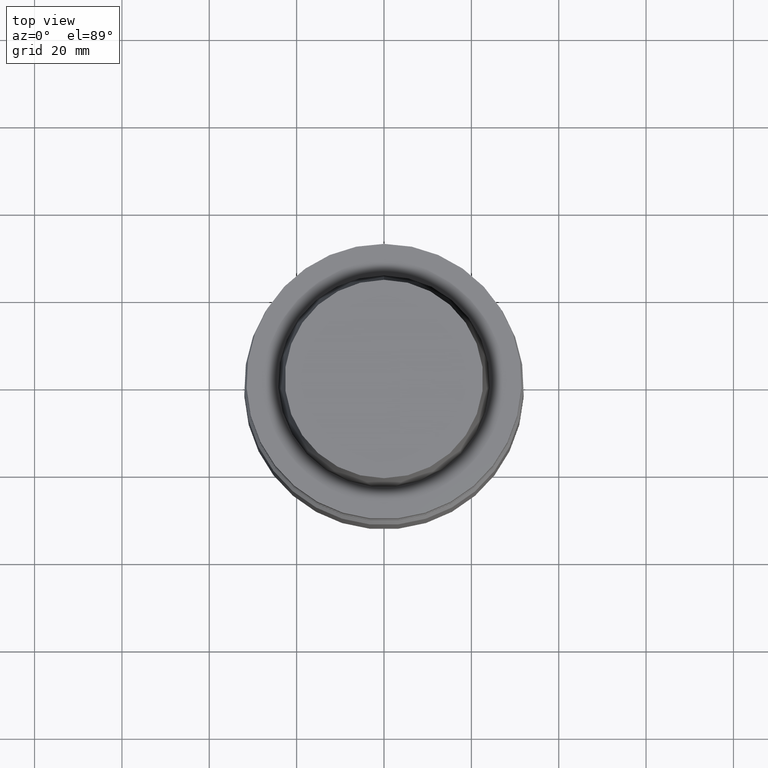
[diagram: clean part render]
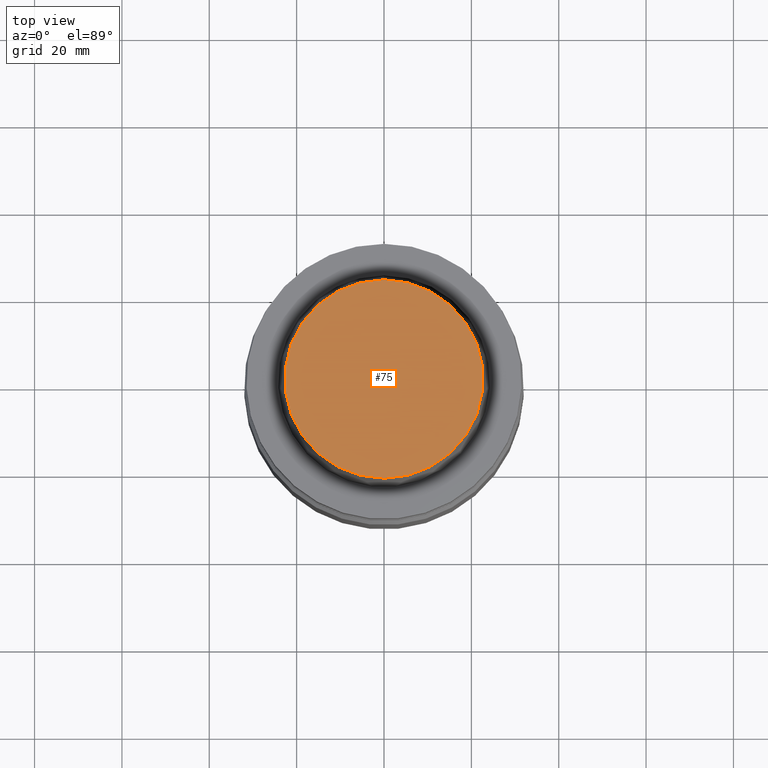
[diagram: same view with one face highlighted and labeled with its STEP entity id]
A machine part, top view. The second image highlights one B-rep face of the part: STEP entity #75.
In plain terms, the highlighted planar face has unit normal (-0, -0, 1).
Its self-contained STEP definition (entity closure, byte-faithful):
#75=ADVANCED_FACE('',(#92),#93,.T.);
#92=FACE_OUTER_BOUND('',#138,.T.);
#93=PLANE('',#139);
#138=EDGE_LOOP('',(#184));
#139=AXIS2_PLACEMENT_3D('',#185,#186,#187);
#184=ORIENTED_EDGE('',*,*,#262,.F.);
#185=CARTESIAN_POINT('',(-1.95943487863577E-015,11.3574999984407,32.0));
#186=DIRECTION('',(-6.12323399573677E-017,-1.22464679914735E-016,1.0));
#187=DIRECTION('',(1.23259516440783E-032,-1.0,-1.22464679914735E-016));
#262=EDGE_CURVE('',#277,#277,#278,.T.);
#277=VERTEX_POINT('',#307);
#278=CIRCLE('',#308,22.7149999968815);
#307=CARTESIAN_POINT('',(-1.95943487863577E-015,22.7149999968815,32.0));
#308=AXIS2_PLACEMENT_3D('',#337,#338,#339);
#337=CARTESIAN_POINT('',(-1.95943487863577E-015,-3.91886975727153E-015,32.0));
#338=DIRECTION('',(6.12323399573677E-017,1.22464679914735E-016,-1.0));
#339=DIRECTION('',(-1.23259516440783E-032,1.0,1.22464679914735E-016));